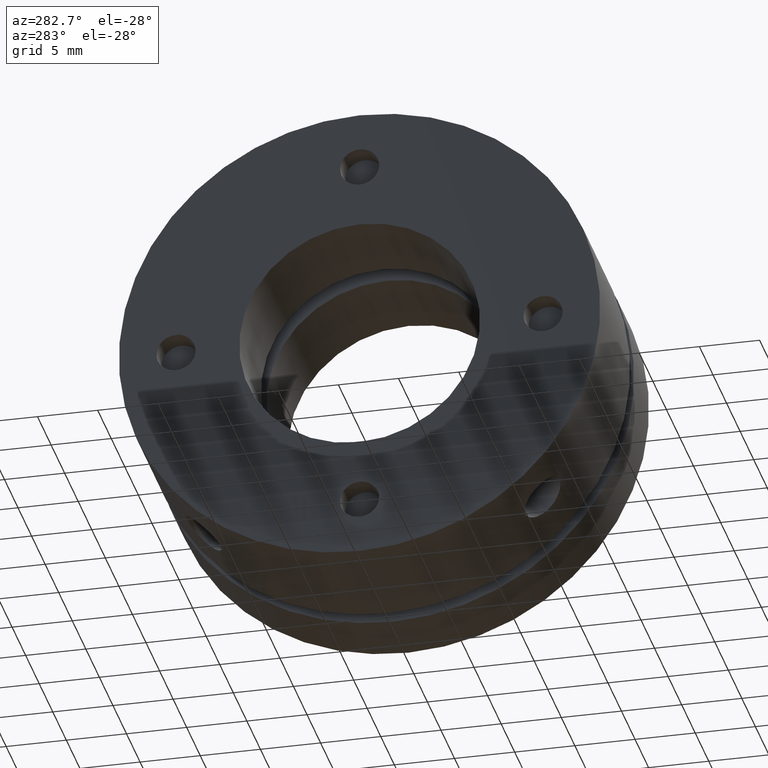
[diagram: clean part render]
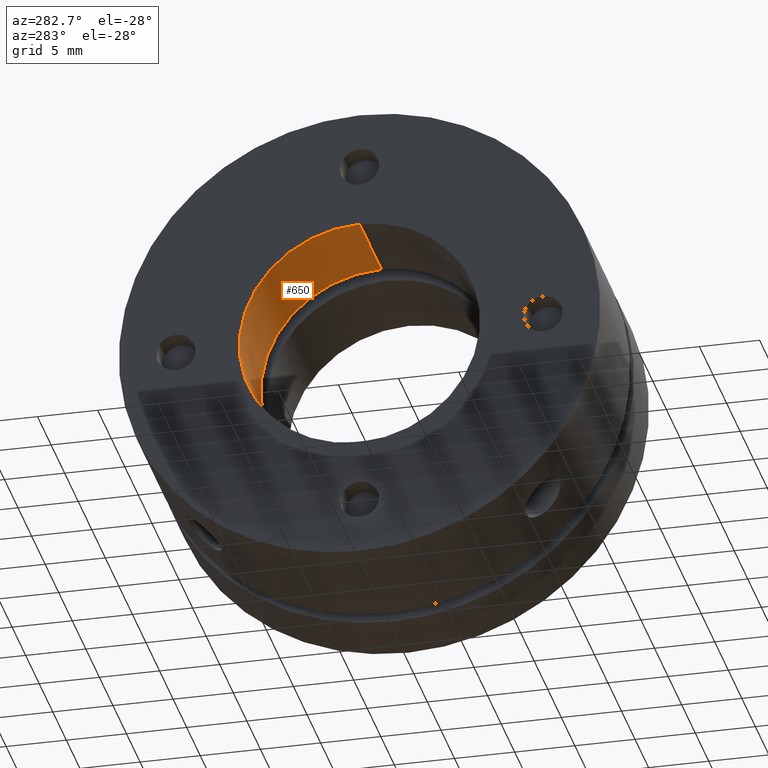
[diagram: same view with one face highlighted and labeled with its STEP entity id]
A machine part, auxiliary view. The second image highlights one B-rep face of the part: STEP entity #650.
In plain terms, the highlighted cylindrical surface (partial cylindrical patch) has radius 10 mm, axis along (1, 0, 0).
Its self-contained STEP definition (entity closure, byte-faithful):
#10 = ORIENTED_EDGE ( 'NONE', *, *, #2617, .F. ) ;
#12 = ORIENTED_EDGE ( 'NONE', *, *, #2562, .F. ) ;
#13 = ORIENTED_EDGE ( 'NONE', *, *, #2632, .T. ) ;
#15 = ORIENTED_EDGE ( 'NONE', *, *, #2635, .F. ) ;
#500 = EDGE_LOOP ( 'NONE', ( #15, #12, #13, #10 ) ) ;
#650 = ADVANCED_FACE ( 'NONE', ( #983 ), #996, .F. ) ;
#857 = DIRECTION ( 'NONE',  ( 1.000000000000000000, 0.0000000000000000000, 0.0000000000000000000 ) ) ;
#858 = CARTESIAN_POINT ( 'NONE',  ( 8.999999999999996400, 1.224646799147353300E-015, 10.00000000000000000 ) ) ;
#860 = DIRECTION ( 'NONE',  ( 1.000000000000000000, 0.0000000000000000000, 0.0000000000000000000 ) ) ;
#865 = CARTESIAN_POINT ( 'NONE',  ( 8.999999999999996400, 0.0000000000000000000, -10.00000000000000000 ) ) ;
#908 = DIRECTION ( 'NONE',  ( 0.0000000000000000000, 0.0000000000000000000, -1.000000000000000000 ) ) ;
#913 = DIRECTION ( 'NONE',  ( -1.000000000000000000, -0.0000000000000000000, -0.0000000000000000000 ) ) ;
#914 = CARTESIAN_POINT ( 'NONE',  ( 8.000000000000024900, 0.0000000000000000000, 0.0000000000000000000 ) ) ;
#983 = FACE_OUTER_BOUND ( 'NONE', #500, .T. ) ;
#996 = CYLINDRICAL_SURFACE ( 'NONE', #2419, 10.00000000000000000 ) ;
#1199 = CIRCLE ( 'NONE', #2193, 10.00000000000000000 ) ;
#1247 = CIRCLE ( 'NONE', #2217, 10.00000000000000000 ) ;
#1336 = VERTEX_POINT ( 'NONE', #1929 ) ;
#1348 = VERTEX_POINT ( 'NONE', #1921 ) ;
#1518 = VERTEX_POINT ( 'NONE', #1868 ) ;
#1521 = VERTEX_POINT ( 'NONE', #1866 ) ;
#1866 = CARTESIAN_POINT ( 'NONE',  ( 8.000000000000024900, 0.0000000000000000000, -10.00000000000000000 ) ) ;
#1868 = CARTESIAN_POINT ( 'NONE',  ( 8.000000000000024900, 1.224646799147353300E-015, 10.00000000000000000 ) ) ;
#1921 = CARTESIAN_POINT ( 'NONE',  ( -1.734723475976807100E-015, 1.224646799147353300E-015, 10.00000000000000000 ) ) ;
#1929 = CARTESIAN_POINT ( 'NONE',  ( -1.734723475976807100E-015, 0.0000000000000000000, -10.00000000000000000 ) ) ;
#2064 = CARTESIAN_POINT ( 'NONE',  ( -1.734723475976807100E-015, 0.0000000000000000000, 0.0000000000000000000 ) ) ;
#2065 = DIRECTION ( 'NONE',  ( 1.000000000000000000, 0.0000000000000000000, 0.0000000000000000000 ) ) ;
#2066 = DIRECTION ( 'NONE',  ( 0.0000000000000000000, 0.0000000000000000000, -1.000000000000000000 ) ) ;
#2193 = AXIS2_PLACEMENT_3D ( 'NONE', #2064, #2065, #2066 ) ;
#2217 = AXIS2_PLACEMENT_3D ( 'NONE', #914, #913, #908 ) ;
#2419 = AXIS2_PLACEMENT_3D ( 'NONE', #3361, #3363, #3371 ) ;
#2562 = EDGE_CURVE ( 'NONE', #1336, #1348, #1199, .T. ) ;
#2617 = EDGE_CURVE ( 'NONE', #1518, #1521, #1247, .T. ) ;
#2632 = EDGE_CURVE ( 'NONE', #1336, #1521, #2850, .T. ) ;
#2635 = EDGE_CURVE ( 'NONE', #1348, #1518, #2853, .T. ) ;
#2850 = LINE ( 'NONE', #865, #2851 ) ;
#2851 = VECTOR ( 'NONE', #860, 1000.000000000000000 ) ;
#2853 = LINE ( 'NONE', #858, #2855 ) ;
#2855 = VECTOR ( 'NONE', #857, 1000.000000000000000 ) ;
#3361 = CARTESIAN_POINT ( 'NONE',  ( 8.999999999999996400, 0.0000000000000000000, 0.0000000000000000000 ) ) ;
#3363 = DIRECTION ( 'NONE',  ( 1.000000000000000000, 0.0000000000000000000, 0.0000000000000000000 ) ) ;
#3371 = DIRECTION ( 'NONE',  ( 0.0000000000000000000, 0.0000000000000000000, -1.000000000000000000 ) ) ;